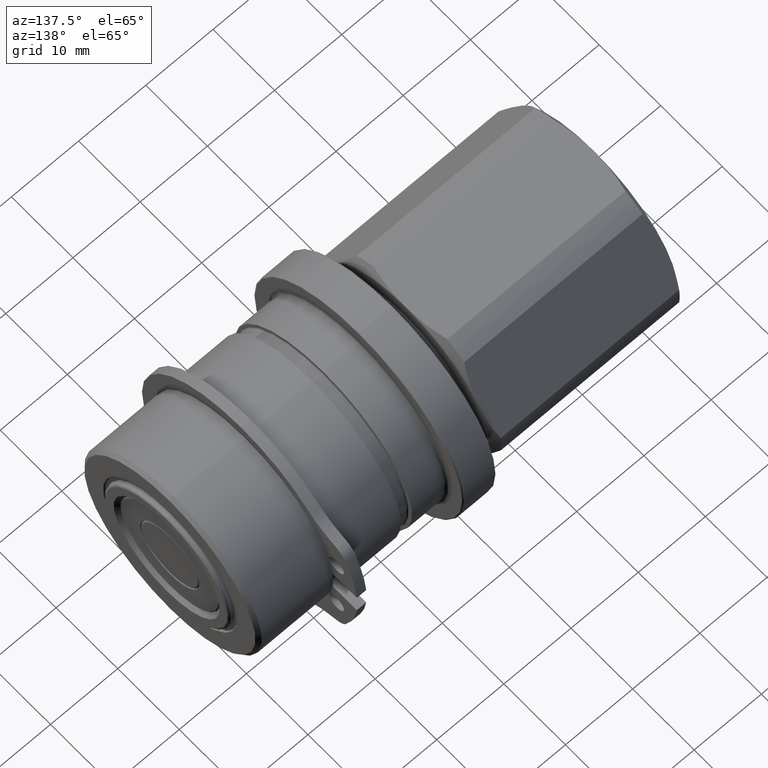
[diagram: clean part render]
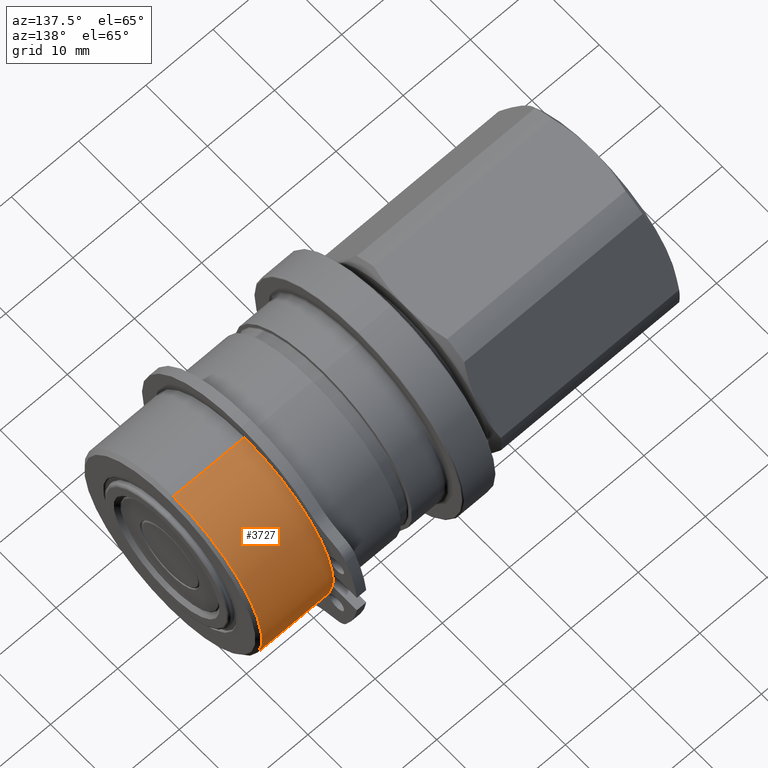
[diagram: same view with one face highlighted and labeled with its STEP entity id]
A machine part, auxiliary view. The second image highlights one B-rep face of the part: STEP entity #3727.
In plain terms, the highlighted cylindrical surface (partial cylindrical patch) has radius 14.4 mm, axis along (-1, -0, -0).
Its self-contained STEP definition (entity closure, byte-faithful):
#175 = EDGE_CURVE ( 'NONE', #4251, #4156, #1479, .T. ) ;
#272 = AXIS2_PLACEMENT_3D ( 'NONE', #4300, #4290, #3061 ) ;
#330 = EDGE_CURVE ( 'NONE', #4175, #4132, #1071, .T. ) ;
#428 = FACE_OUTER_BOUND ( 'NONE', #1307, .T. ) ;
#429 = CYLINDRICAL_SURFACE ( 'NONE', #825, 14.40000000000000000 ) ;
#710 = LINE ( 'NONE', #2611, #712 ) ;
#712 = VECTOR ( 'NONE', #2528, 1000.000000000000000 ) ;
#715 = CIRCLE ( 'NONE', #975, 14.40000000000000000 ) ;
#732 = AXIS2_PLACEMENT_3D ( 'NONE', #1975, #2066, #1983 ) ;
#825 = AXIS2_PLACEMENT_3D ( 'NONE', #3221, #3230, #3219 ) ;
#975 = AXIS2_PLACEMENT_3D ( 'NONE', #2605, #2486, #2598 ) ;
#987 = AXIS2_PLACEMENT_3D ( 'NONE', #2497, #2724, #2574 ) ;
#1071 = CIRCLE ( 'NONE', #732, 14.40000000000000000 ) ;
#1259 = ORIENTED_EDGE ( 'NONE', *, *, #175, .T. ) ;
#1260 = ORIENTED_EDGE ( 'NONE', *, *, #4000, .T. ) ;
#1273 = ORIENTED_EDGE ( 'NONE', *, *, #4001, .F. ) ;
#1274 = ORIENTED_EDGE ( 'NONE', *, *, #3984, .F. ) ;
#1275 = ORIENTED_EDGE ( 'NONE', *, *, #3982, .F. ) ;
#1282 = ORIENTED_EDGE ( 'NONE', *, *, #330, .F. ) ;
#1307 = EDGE_LOOP ( 'NONE', ( #1259, #1260, #1282, #1273, #1274, #1275 ) ) ;
#1479 = CIRCLE ( 'NONE', #272, 14.40000000000000000 ) ;
#1975 = CARTESIAN_POINT ( 'NONE',  ( 51.10000000000000900, -0.02927498360198051200, 4.102387834613020600E-016 ) ) ;
#1983 = DIRECTION ( 'NONE',  ( 0.0000000000000000000, 0.0000000000000000000, 1.000000000000000000 ) ) ;
#2066 = DIRECTION ( 'NONE',  ( -1.000000000000000000, -0.0000000000000000000, -0.0000000000000000000 ) ) ;
#2486 = DIRECTION ( 'NONE',  ( -1.000000000000000000, -0.0000000000000000000, -0.0000000000000000000 ) ) ;
#2497 = CARTESIAN_POINT ( 'NONE',  ( 51.10000000000000900, -0.02927498360198051200, 4.102387834613020600E-016 ) ) ;
#2528 = DIRECTION ( 'NONE',  ( -1.000000000000000000, -0.0000000000000000000, -0.0000000000000000000 ) ) ;
#2574 = DIRECTION ( 'NONE',  ( 0.0000000000000000000, 0.0000000000000000000, 1.000000000000000000 ) ) ;
#2598 = DIRECTION ( 'NONE',  ( 0.0000000000000000000, 0.0000000000000000000, 1.000000000000000000 ) ) ;
#2605 = CARTESIAN_POINT ( 'NONE',  ( 51.10000000000000900, -0.02927498360198051200, 4.102387834613020600E-016 ) ) ;
#2611 = CARTESIAN_POINT ( 'NONE',  ( 29.20000000000000300, -0.02927498360198051200, 14.40000000000000000 ) ) ;
#2638 = DIRECTION ( 'NONE',  ( -1.000000000000000000, -0.0000000000000000000, -0.0000000000000000000 ) ) ;
#2724 = DIRECTION ( 'NONE',  ( -1.000000000000000000, -0.0000000000000000000, -0.0000000000000000000 ) ) ;
#2742 = CARTESIAN_POINT ( 'NONE',  ( 29.20000000000000300, -0.02927498360197874900, -14.40000000000000000 ) ) ;
#2755 = CARTESIAN_POINT ( 'NONE',  ( 51.10000000000000900, 14.28156007239667400, 1.600000000000002300 ) ) ;
#2780 = CARTESIAN_POINT ( 'NONE',  ( 51.10000000000000900, -0.02927498360197874900, -14.40000000000000000 ) ) ;
#3061 = DIRECTION ( 'NONE',  ( 0.0000000000000000000, 0.0000000000000000000, -1.000000000000000000 ) ) ;
#3219 = DIRECTION ( 'NONE',  ( 0.0000000000000000000, 0.0000000000000000000, 1.000000000000000000 ) ) ;
#3221 = CARTESIAN_POINT ( 'NONE',  ( 29.20000000000000300, -0.02927498360198051200, 4.102387834613020600E-016 ) ) ;
#3230 = DIRECTION ( 'NONE',  ( -1.000000000000000000, -0.0000000000000000000, -0.0000000000000000000 ) ) ;
#3546 = LINE ( 'NONE', #2742, #3548 ) ;
#3548 = VECTOR ( 'NONE', #2638, 1000.000000000000000 ) ;
#3549 = CIRCLE ( 'NONE', #987, 14.40000000000000000 ) ;
#3692 = CARTESIAN_POINT ( 'NONE',  ( 61.69999999999999600, -0.02927498360198051200, 14.40000000000000000 ) ) ;
#3727 = ADVANCED_FACE ( 'NONE', ( #428 ), #429, .T. ) ;
#3917 = CARTESIAN_POINT ( 'NONE',  ( 61.69999999999999600, -0.02927498360197874900, -14.40000000000000000 ) ) ;
#3959 = CARTESIAN_POINT ( 'NONE',  ( 51.10000000000000900, 14.28156007239667400, -1.599999999999997400 ) ) ;
#3961 = CARTESIAN_POINT ( 'NONE',  ( 51.10000000000000900, -0.02927498360198051200, 14.40000000000000000 ) ) ;
#3982 = EDGE_CURVE ( 'NONE', #4251, #4173, #710, .T. ) ;
#3984 = EDGE_CURVE ( 'NONE', #4173, #4122, #715, .T. ) ;
#4000 = EDGE_CURVE ( 'NONE', #4156, #4132, #3546, .T. ) ;
#4001 = EDGE_CURVE ( 'NONE', #4122, #4175, #3549, .T. ) ;
#4122 = VERTEX_POINT ( 'NONE', #2755 ) ;
#4132 = VERTEX_POINT ( 'NONE', #2780 ) ;
#4156 = VERTEX_POINT ( 'NONE', #3917 ) ;
#4173 = VERTEX_POINT ( 'NONE', #3961 ) ;
#4175 = VERTEX_POINT ( 'NONE', #3959 ) ;
#4251 = VERTEX_POINT ( 'NONE', #3692 ) ;
#4290 = DIRECTION ( 'NONE',  ( -1.000000000000000000, -0.0000000000000000000, -0.0000000000000000000 ) ) ;
#4300 = CARTESIAN_POINT ( 'NONE',  ( 61.69999999999999600, -0.02927498360198051200, 4.102387834613020600E-016 ) ) ;